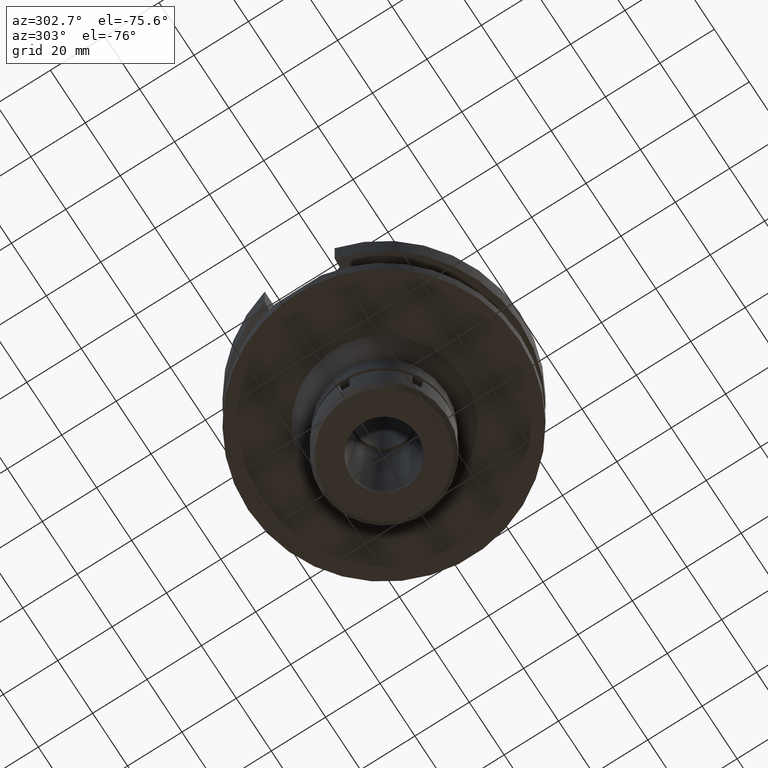
[diagram: clean part render]
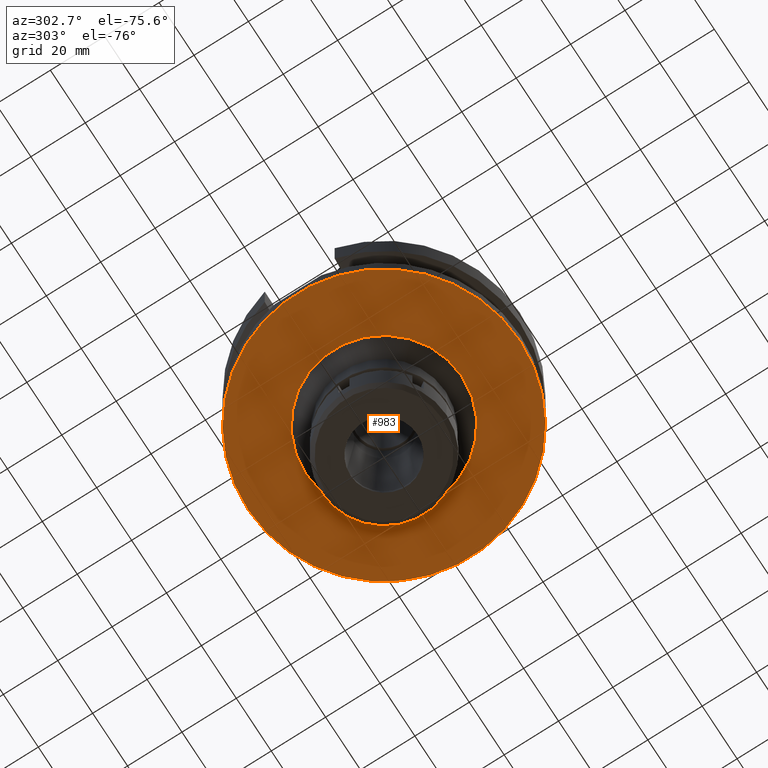
[diagram: same view with one face highlighted and labeled with its STEP entity id]
A machine part, auxiliary view. The second image highlights one B-rep face of the part: STEP entity #983.
In plain terms, the highlighted planar face has unit normal (0, 0, -1).
Its self-contained STEP definition (entity closure, byte-faithful):
#31 = EDGE_CURVE ( 'NONE', #1697, #3454, #1964, .T. ) ;
#61 = VERTEX_POINT ( 'NONE', #535 ) ;
#134 = CIRCLE ( 'NONE', #2354, 50.00000000000000000 ) ;
#315 = DIRECTION ( 'NONE',  ( 0.0000000000000000000, -1.000000000000000000, 0.0000000000000000000 ) ) ;
#523 = EDGE_LOOP ( 'NONE', ( #1345, #1596 ) ) ;
#535 = CARTESIAN_POINT ( 'NONE',  ( 0.0000000000000000000, 28.75000000000000000, -38.00000000000000000 ) ) ;
#656 = CARTESIAN_POINT ( 'NONE',  ( 0.0000000000000000000, 0.0000000000000000000, -38.00000000000000000 ) ) ;
#835 = DIRECTION ( 'NONE',  ( 0.0000000000000000000, -1.000000000000000000, 0.0000000000000000000 ) ) ;
#918 = ORIENTED_EDGE ( 'NONE', *, *, #3020, .F. ) ;
#941 = CARTESIAN_POINT ( 'NONE',  ( 0.0000000000000000000, -50.00000000000000000, -38.00000000000000000 ) ) ;
#983 = ADVANCED_FACE ( 'NONE', ( #3411, #1505 ), #2827, .T. ) ;
#1121 = CIRCLE ( 'NONE', #3358, 28.75000000000000000 ) ;
#1283 = CARTESIAN_POINT ( 'NONE',  ( 0.0000000000000000000, -28.75000000000000000, -38.00000000000000000 ) ) ;
#1345 = ORIENTED_EDGE ( 'NONE', *, *, #3506, .F. ) ;
#1346 = DIRECTION ( 'NONE',  ( 0.0000000000000000000, 0.0000000000000000000, -1.000000000000000000 ) ) ;
#1413 = CARTESIAN_POINT ( 'NONE',  ( 0.0000000000000000000, 50.00000000000000000, -38.00000000000000000 ) ) ;
#1505 = FACE_BOUND ( 'NONE', #2310, .T. ) ;
#1596 = ORIENTED_EDGE ( 'NONE', *, *, #31, .F. ) ;
#1616 = AXIS2_PLACEMENT_3D ( 'NONE', #656, #3450, #315 ) ;
#1697 = VERTEX_POINT ( 'NONE', #941 ) ;
#1712 = CARTESIAN_POINT ( 'NONE',  ( 0.0000000000000000000, 2.574697430526999748E-14, -38.00000000000000000 ) ) ;
#1920 = CARTESIAN_POINT ( 'NONE',  ( 0.0000000000000000000, 0.0000000000000000000, -38.00000000000000000 ) ) ;
#1964 = CIRCLE ( 'NONE', #2306, 50.00000000000000000 ) ;
#1983 = ORIENTED_EDGE ( 'NONE', *, *, #3392, .F. ) ;
#2188 = DIRECTION ( 'NONE',  ( 0.0000000000000000000, -1.000000000000000000, 0.0000000000000000000 ) ) ;
#2278 = DIRECTION ( 'NONE',  ( 0.0000000000000000000, 0.0000000000000000000, 1.000000000000000000 ) ) ;
#2306 = AXIS2_PLACEMENT_3D ( 'NONE', #1712, #2278, #835 ) ;
#2310 = EDGE_LOOP ( 'NONE', ( #1983, #918 ) ) ;
#2354 = AXIS2_PLACEMENT_3D ( 'NONE', #3091, #3333, #2774 ) ;
#2446 = CARTESIAN_POINT ( 'NONE',  ( 0.0000000000000000000, 0.0000000000000000000, -38.00000000000000000 ) ) ;
#2685 = AXIS2_PLACEMENT_3D ( 'NONE', #1920, #1346, #2188 ) ;
#2740 = CIRCLE ( 'NONE', #2685, 28.75000000000000000 ) ;
#2774 = DIRECTION ( 'NONE',  ( 0.0000000000000000000, 1.000000000000000000, 0.0000000000000000000 ) ) ;
#2827 = PLANE ( 'NONE',  #1616 ) ;
#2844 = VERTEX_POINT ( 'NONE', #1283 ) ;
#3020 = EDGE_CURVE ( 'NONE', #2844, #61, #2740, .T. ) ;
#3091 = CARTESIAN_POINT ( 'NONE',  ( 0.0000000000000000000, 2.574697430526999748E-14, -38.00000000000000000 ) ) ;
#3294 = DIRECTION ( 'NONE',  ( 0.0000000000000000000, 1.000000000000000000, 0.0000000000000000000 ) ) ;
#3333 = DIRECTION ( 'NONE',  ( 0.0000000000000000000, 0.0000000000000000000, 1.000000000000000000 ) ) ;
#3358 = AXIS2_PLACEMENT_3D ( 'NONE', #2446, #3561, #3294 ) ;
#3392 = EDGE_CURVE ( 'NONE', #61, #2844, #1121, .T. ) ;
#3411 = FACE_OUTER_BOUND ( 'NONE', #523, .T. ) ;
#3450 = DIRECTION ( 'NONE',  ( 0.0000000000000000000, 0.0000000000000000000, -1.000000000000000000 ) ) ;
#3454 = VERTEX_POINT ( 'NONE', #1413 ) ;
#3506 = EDGE_CURVE ( 'NONE', #3454, #1697, #134, .T. ) ;
#3561 = DIRECTION ( 'NONE',  ( 0.0000000000000000000, 0.0000000000000000000, -1.000000000000000000 ) ) ;